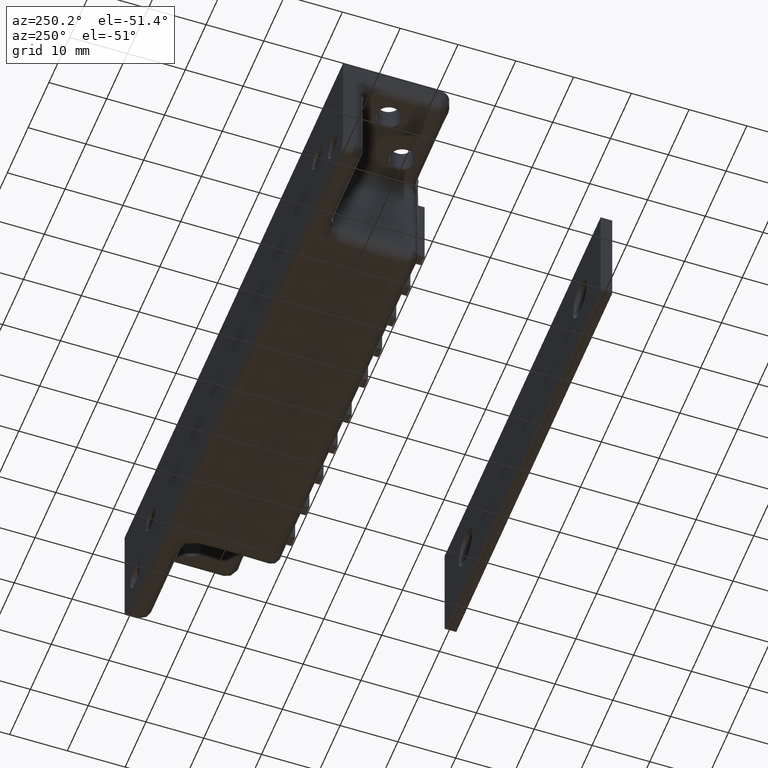
[diagram: clean part render]
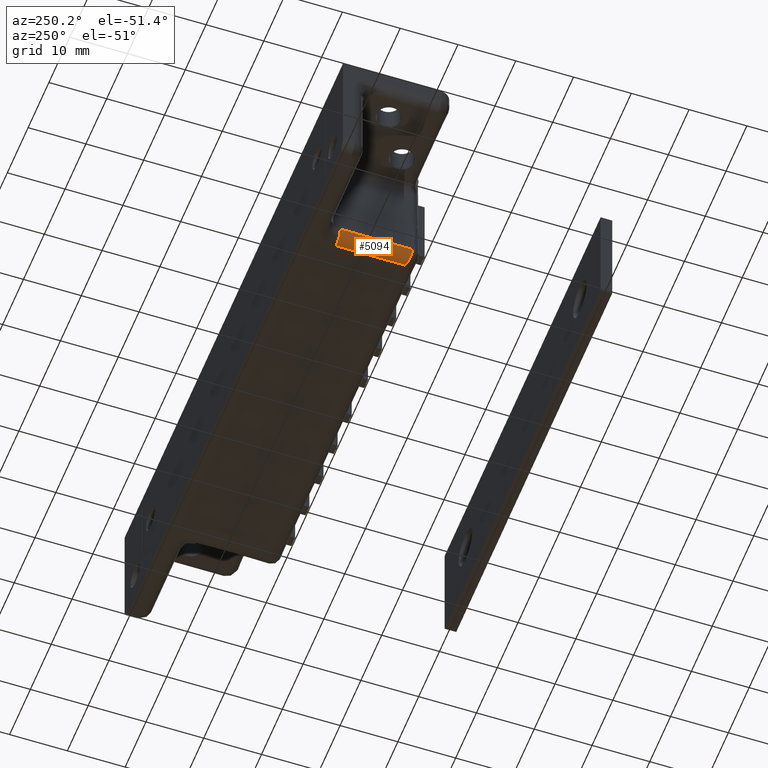
[diagram: same view with one face highlighted and labeled with its STEP entity id]
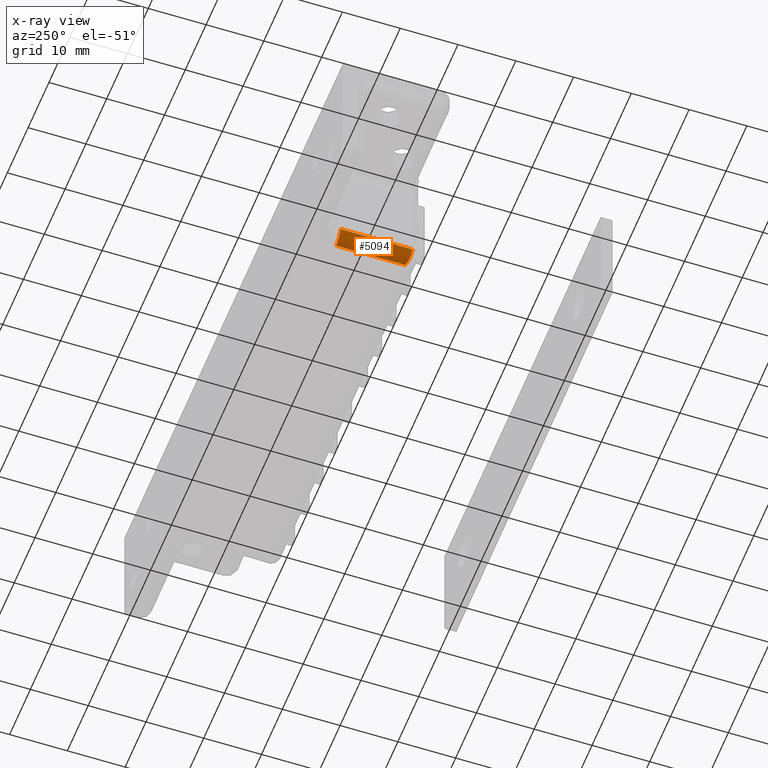
[diagram: x-ray of the same camera — body ghosted, the highlighted face saturated]
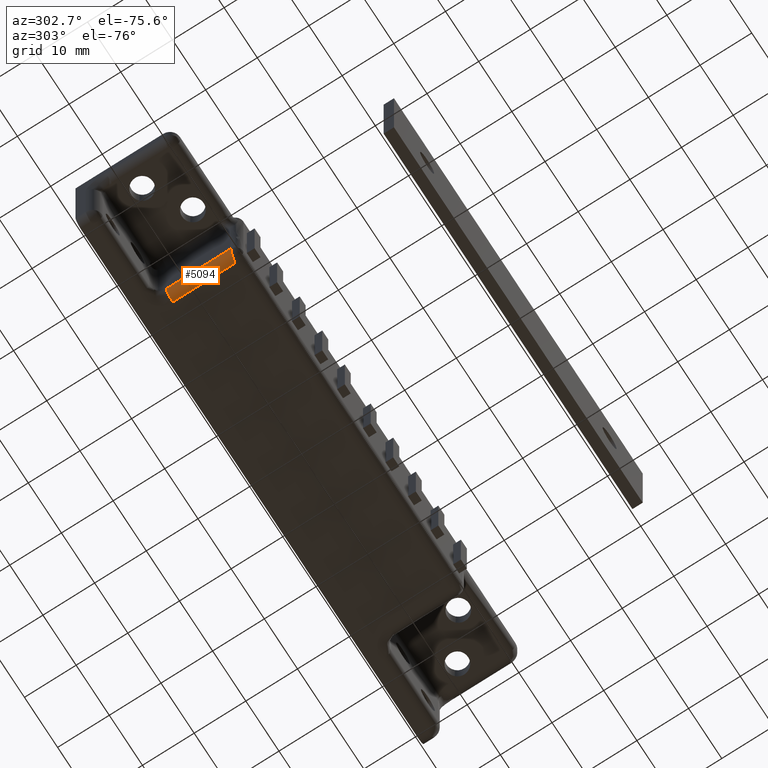
[diagram: same view with one face highlighted and labeled with its STEP entity id]
A machine part, auxiliary view. The second image highlights one B-rep face of the part: STEP entity #5094.
The next image is the same camera in x-ray: the body ghosted, the highlighted face saturated — about 0% of this face is hidden behind the body in this view.
A second angle (auxiliary view) of the same face is appended — the face is thin or edge-on in the first view.
In plain terms, the highlighted face is a freeform B-spline surface patch.
Its self-contained STEP definition (entity closure, byte-faithful):
#3102=CARTESIAN_POINT('',(-34.500000000000000,-18.500000000000000,-8.699999999958781));
#3103=VERTEX_POINT('',#3102);
#3127=CARTESIAN_POINT('',(-34.500000000000000,-5.999999999999920,-8.699999999958781));
#3128=VERTEX_POINT('',#3127);
#3134=CARTESIAN_POINT('',(-34.500000000000000,-5.999999999999920,-8.699999999958781));
#3135=CARTESIAN_POINT('',(-34.500000000000000,-18.500000000000000,-8.699999999958781));
#3136=QUASI_UNIFORM_CURVE('',1,(#3134,#3135),.UNSPECIFIED.,.F.,.U.);
#3137=EDGE_CURVE('',#3128,#3103,#3136,.T.);
#4401=CARTESIAN_POINT('',(-32.500000000000000,-18.0,-10.699999999958781));
#4402=VERTEX_POINT('',#4401);
#4403=CARTESIAN_POINT('',(-32.500000000000000,-18.0,-10.699999999958781));
#4404=CARTESIAN_POINT('',(-34.500000000000000,-18.500000000000000,-10.699999999958781));
#4405=CARTESIAN_POINT('',(-34.500000000000000,-18.500000000000000,-8.699999999958781));
#4413=(BOUNDED_CURVE()B_SPLINE_CURVE(2,(#4403,#4404,#4405),.UNSPECIFIED.,.F.,.U.)CURVE()GEOMETRIC_REPRESENTATION_ITEM()QUASI_UNIFORM_CURVE()RATIONAL_B_SPLINE_CURVE((1.0,0.707106781186548,1.0))REPRESENTATION_ITEM(''));
#4414=EDGE_CURVE('',#4402,#3103,#4413,.T.);
#5040=CARTESIAN_POINT('',(-32.500000000000000,-5.999999999999920,-10.699999999958781));
#5041=VERTEX_POINT('',#5040);
#5055=CARTESIAN_POINT('',(-32.500000000000000,-5.999999999999920,-10.699999999958781));
#5056=CARTESIAN_POINT('',(-32.745455093442189,-5.999999999999939,-10.700203717661820));
#5057=CARTESIAN_POINT('',(-33.187116029770259,-5.999999999999872,-10.617633420977480));
#5058=CARTESIAN_POINT('',(-33.690786135443602,-5.999999999999989,-10.332268109029480));
#5059=CARTESIAN_POINT('',(-34.024164650563762,-5.999999999999797,-10.014770232375090));
#5060=CARTESIAN_POINT('',(-34.270347507816950,-6.000000000000024,-9.665290220620063));
#5061=CARTESIAN_POINT('',(-34.453297389797093,-5.999999999999945,-9.223572280938500));
#5062=CARTESIAN_POINT('',(-34.500063386094610,-5.999999999999849,-8.879989424664863));
#5063=CARTESIAN_POINT('',(-34.500000000000000,-5.999999999999920,-8.699999999958781));
#5064=B_SPLINE_CURVE_WITH_KNOTS('',3,(#5055,#5056,#5057,#5058,#5059,#5060,#5061,#5062,#5063),.UNSPECIFIED.,.F.,.U.,(4,1,1,1,1,1,4),(0.000000207717242,0.736326607831431,1.325394844338517,1.718064939344772,2.110795784780962,2.601711555788977,3.141671488685752),.UNSPECIFIED.);
#5065=EDGE_CURVE('',#5041,#3128,#5064,.T.);
#5070=CARTESIAN_POINT('',(-34.499923846128340,-18.812500000000000,-8.682546928962035));
#5071=CARTESIAN_POINT('',(-34.499923846128340,-5.679687499999918,-8.682546928962035));
#5072=CARTESIAN_POINT('',(-34.518639973359079,-18.812500000000004,-10.827202683982286));
#5073=CARTESIAN_POINT('',(-34.518639973359079,-5.679687499999918,-10.827202683982286));
#5074=CARTESIAN_POINT('',(-32.377902920930282,-18.812500000000000,-10.696269596802511));
#5075=CARTESIAN_POINT('',(-32.377902920930282,-5.679687499999918,-10.696269596802511));
#5083=(BOUNDED_SURFACE()B_SPLINE_SURFACE(1,2,((#5070,#5072,#5074),(#5071,#5073,#5075)),.UNSPECIFIED.,.F.,.F.,.U.)B_SPLINE_SURFACE_WITH_KNOTS((2,2),(3,3),(0.0,13.132812500000091),(0.0,3.478498999687465),.UNSPECIFIED.)GEOMETRIC_REPRESENTATION_ITEM()RATIONAL_B_SPLINE_SURFACE(((1.0,0.681998360062499,1.0),(1.0,0.681998360062499,1.0)))REPRESENTATION_ITEM('')SURFACE());
#5084=CARTESIAN_POINT('',(-32.500000000000000,-18.0,-10.699999999958781));
#5085=CARTESIAN_POINT('',(-32.500000000000000,-5.999999999999920,-10.699999999958781));
#5086=QUASI_UNIFORM_CURVE('',1,(#5084,#5085),.UNSPECIFIED.,.F.,.U.);
#5087=EDGE_CURVE('',#4402,#5041,#5086,.T.);
#5088=ORIENTED_EDGE('',*,*,#5087,.F.);
#5089=ORIENTED_EDGE('',*,*,#4414,.T.);
#5090=ORIENTED_EDGE('',*,*,#3137,.F.);
#5091=ORIENTED_EDGE('',*,*,#5065,.F.);
#5092=EDGE_LOOP('',(#5088,#5089,#5090,#5091));
#5093=FACE_OUTER_BOUND('',#5092,.T.);
#5094=ADVANCED_FACE('',(#5093),#5083,.T.);